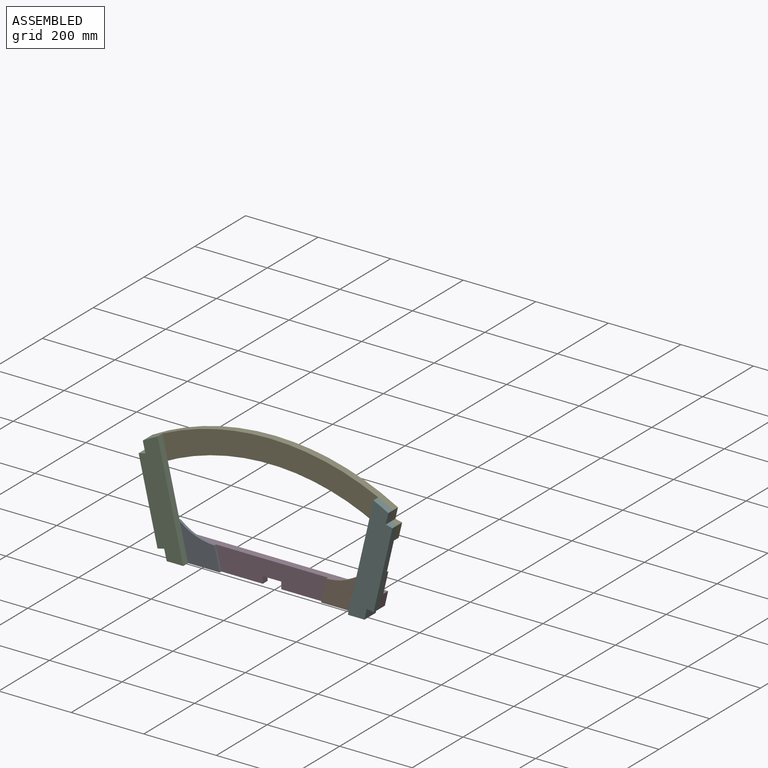
[diagram: assembled view]
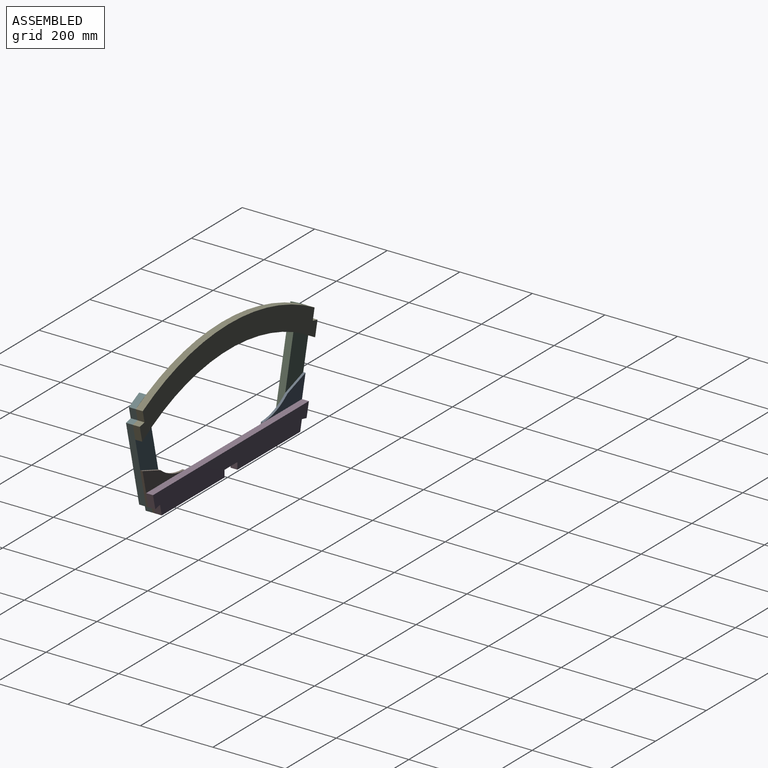
[diagram: assembled view, second angle]
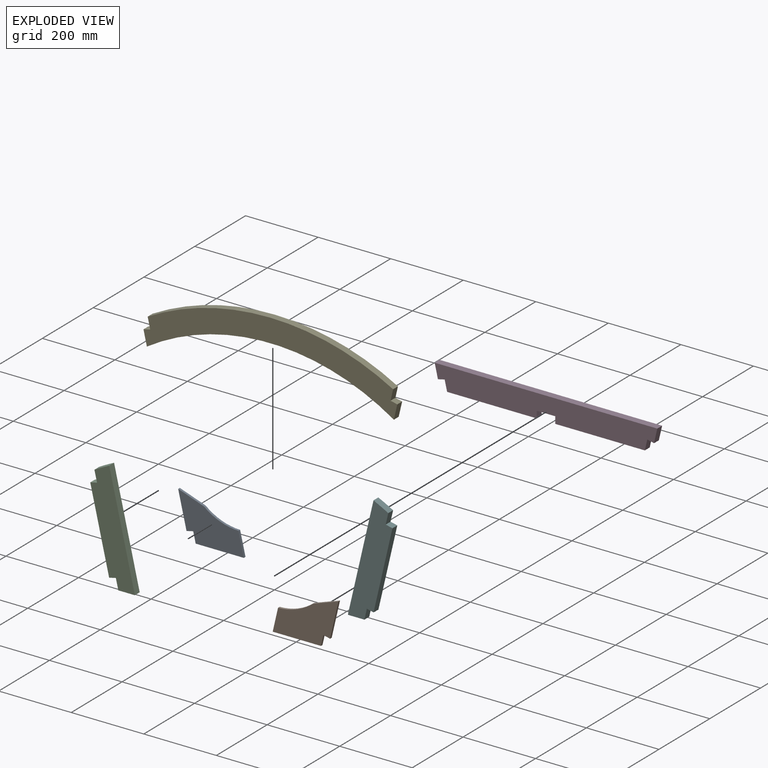
[diagram: exploded view]
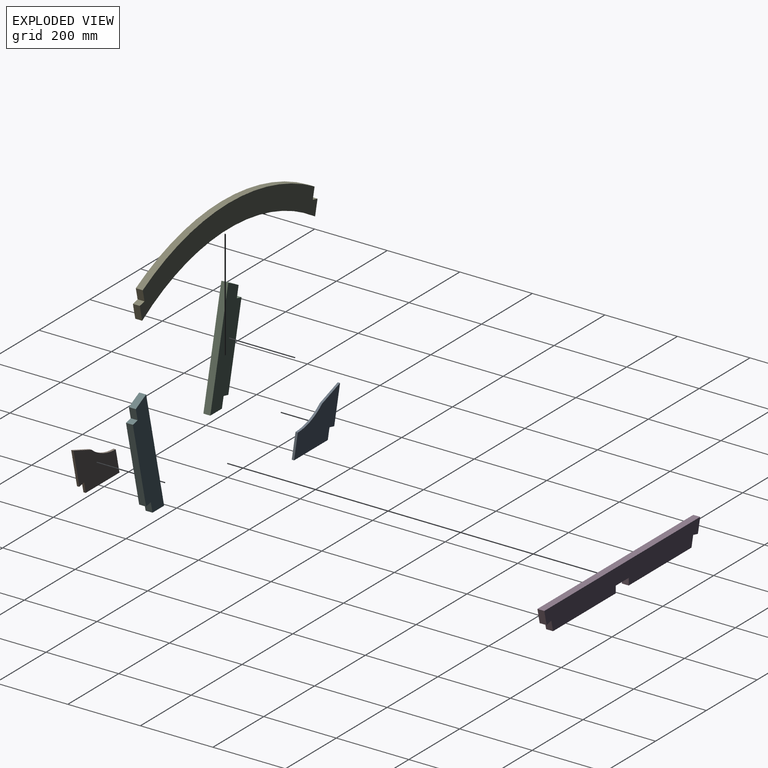
[diagram: exploded view, second angle]
ASSEMBLY  parts=6 mates=5
PART A: 9 faces, bbox 181.2x6.4x123.7 mm
  f0: plane 70.95x24.74mm, normal (0.33,0,0.94), area 477.1mm2, adj f1,f6,f7,f8
  f1: plane 98.96x23.01mm, normal (-0.97,0,-0.23), area 645.2mm2, adj f0,f2,f7,f8
  f2: plane 18.56x6.35mm, normal (0.23,0,-0.97), area 121mm2, adj f1,f3,f7,f8
  f3: plane 29.06x6.76mm, normal (-0.97,0,-0.23), area 189.4mm2, adj f2,f4,f7,f8
  f4: plane 132.84x6.35mm, normal (0,0,-1), area 843.5mm2, adj f3,f5,f7,f8
  f5: plane 63.5x14.77mm, normal (0.97,0,0.23), area 414mm2, adj f4,f6,f7,f8
  f6: cylinder r=152.4mm len=95.45mm, axis (0,1,0), area 659.3mm2, adj f0,f5,f7,f8
  f7: plane 181.17x123.7mm, normal (0,-1,0), area 13217.8mm2, adj f0,f1,f2,f3,f4,f5,f6
  f8: plane 181.17x123.7mm, normal (0,1,0), area 13217.8mm2, adj f0,f1,f2,f3,f4,f5,f6
PART B: same geometry as A
PART C: 10 faces, bbox 122.9x19.1x304 mm
  f0: plane 303.96x70.69mm, normal (0.97,0,0.23), area 5944.9mm2, adj f1,f7,f8,f9
  f1: cylinder r=695.32mm len=40.76mm, axis (0,1,0), area 873.4mm2, adj f0,f2,f8,f9
  f2: plane 30.36x19.05mm, normal (-0.97,0,-0.23), area 593.8mm2, adj f1,f3,f8,f9
  f3: plane 19.05x18.56mm, normal (-0.23,0,0.97), area 362.9mm2, adj f2,f4,f8,f9
  f4: plane 223.57x51.99mm, normal (-0.97,0,-0.23), area 4372.7mm2, adj f3,f5,f8,f9
  f5: plane 19.05x18.56mm, normal (0.23,0,-0.97), area 362.9mm2, adj f4,f6,f8,f9
  f6: plane 29.06x19.05mm, normal (-0.97,0,-0.23), area 568.3mm2, adj f5,f7,f8,f9
  f7: plane 45.64x19.05mm, normal (0,0,-1), area 869.4mm2, adj f0,f6,f8,f9
  f8: plane 303.96x122.94mm, normal (0,-1,0), area 17777.1mm2, adj f0,f1,f2,f3,f4,f5,f6,f7
  f9: plane 303.96x122.94mm, normal (0,1,0), area 17777.1mm2, adj f0,f1,f2,f3,f4,f5,f6,f7
PART D: 14 faces, bbox 613.7x19.1x63.5 mm
  f0: plane 613.74x19.05mm, normal (0,0,1), area 11691.6mm2, adj f1,f11,f12,f13
  f1: plane 38.76x19.05mm, normal (-0.97,0,-0.23), area 758.1mm2, adj f0,f2,f12,f13
  f2: plane 19.05x18.56mm, normal (0.23,0,-0.97), area 362.9mm2, adj f1,f3,f12,f13
  f3: plane 29.06x19.05mm, normal (-0.97,0,-0.23), area 568.3mm2, adj f2,f4,f12,f13
  f4: plane 247.14x19.05mm, normal (0,0,-1), area 4708mm2, adj f3,f5,f12,f13
  f5: plane 19.05x19.05mm, normal (1,0,0), area 362.9mm2, adj f4,f6,f12,f13
  f6: plane 50.8x19.05mm, normal (0,0,-1), area 967.7mm2, adj f5,f7,f12,f13
  f7: plane 19.05x19.05mm, normal (-1,0,0), area 362.9mm2, adj f6,f8,f12,f13
  f8: plane 247.14x19.05mm, normal (0,0,-1), area 4708mm2, adj f7,f9,f12,f13
  f9: plane 29.06x19.05mm, normal (0.97,0,-0.23), area 568.3mm2, adj f8,f10,f12,f13
  f10: plane 19.05x18.56mm, normal (-0.23,0,-0.97), area 362.9mm2, adj f9,f11,f12,f13
  f11: plane 38.76x19.05mm, normal (0.97,0,-0.23), area 758.1mm2, adj f0,f10,f12,f13
  f12: plane 613.74x63.5mm, normal (0,-1,0), area 36014.6mm2, adj f0,f1,f2,f3,f4,f5,f6,f7
  f13: plane 613.74x63.5mm, normal (0,1,0), area 36014.6mm2, adj f0,f1,f2,f3,f4,f5,f6,f7
PART E: 10 faces, bbox 699.7x19.1x163.1 mm
  f0: cylinder r=631.82mm len=680.85mm, axis (0,1,0), area 13697.5mm2, adj f1,f7,f8,f9
  f1: plane 40.51x19.05mm, normal (0.97,0,-0.23), area 792.2mm2, adj f0,f2,f8,f9
  f2: plane 19.05x18.56mm, normal (0.23,0,0.97), area 362.9mm2, adj f1,f3,f8,f9
  f3: plane 30.36x19.05mm, normal (0.97,0,-0.23), area 593.8mm2, adj f2,f4,f8,f9
  f4: cylinder r=695.32mm len=676.7mm, axis (0,1,0), area 13463.3mm2, adj f3,f5,f8,f9
  f5: plane 30.36x19.05mm, normal (-0.97,0,-0.23), area 593.8mm2, adj f4,f6,f8,f9
  f6: plane 19.05x18.56mm, normal (-0.23,0,0.97), area 362.9mm2, adj f5,f7,f8,f9
  f7: plane 40.51x19.05mm, normal (-0.97,0,-0.23), area 792.2mm2, adj f0,f6,f8,f9
  f8: plane 699.69x163.05mm, normal (0,-1,0), area 45450.1mm2, adj f0,f1,f2,f3,f4,f5,f6,f7
  f9: plane 699.69x163.05mm, normal (0,1,0), area 45450.1mm2, adj f0,f1,f2,f3,f4,f5,f6,f7
PART F: same geometry as C
PLACE A t=(0,-9.52,-19.05)mm
PLACE B rot(axis=(0,0,1),180deg) t=(0,-15.87,-19.05)mm
PLACE C t=(0,-15.88,-19.05)mm
PLACE D t=(0,9.53,-19.05)mm
PLACE E t=(0,3.18,-19.05)mm
PLACE F rot(axis=(0,0,1),180deg) t=(0,-34.92,-19.05)mm
MATE fastened A.f7 <-> C.f9  axis (0,-1,0) through (-279.3,-15.87,10)mm
MATE fastened F.f8 <-> E.f8  axis (0,1,0) through (331.29,-15.87,233.58)mm
MATE fastened F.f8 <-> B.f8  axis (0,1,0) through (279.3,-15.87,10)mm
MATE fastened A.f8 <-> D.f12  axis (0,1,0) through (-279.3,-9.52,10)mm
MATE fastened B.f7 <-> D.f12  axis (0,1,0) through (279.3,-9.52,10)mm
